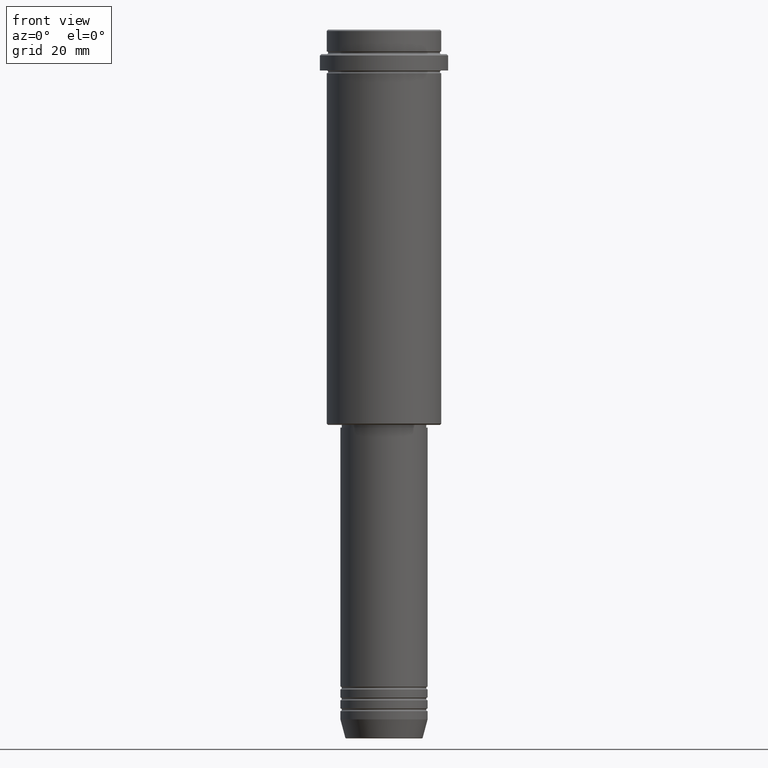
[diagram: clean part render]
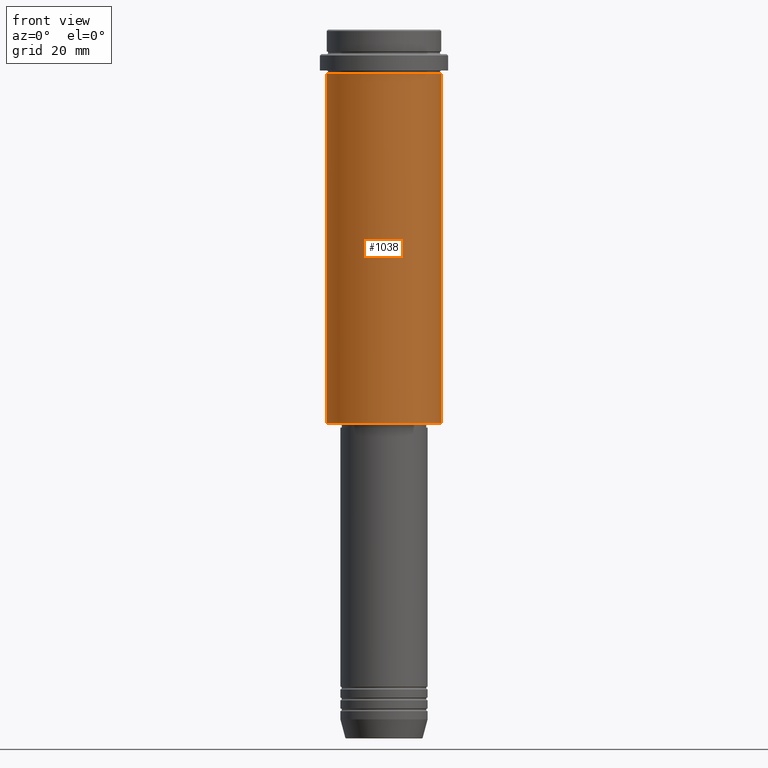
[diagram: same view with one face highlighted and labeled with its STEP entity id]
A machine part, front view. The second image highlights one B-rep face of the part: STEP entity #1038.
In plain terms, the highlighted cylindrical surface (partial cylindrical patch) has radius 21 mm, axis along (-0, -0, 1).
Its self-contained STEP definition (entity closure, byte-faithful):
#92 = DIRECTION ( 'NONE',  ( -0.000000000000000000, -0.000000000000000000, 1.000000000000000000 ) ) ;
#103 = VECTOR ( 'NONE', #530, 1000.000000000000000 ) ;
#123 = EDGE_LOOP ( 'NONE', ( #287, #1005, #302, #1215 ) ) ;
#142 = DIRECTION ( 'NONE',  ( -0.000000000000000000, -0.000000000000000000, 1.000000000000000000 ) ) ;
#168 = DIRECTION ( 'NONE',  ( 1.000000000000000000, 0.000000000000000000, 0.000000000000000000 ) ) ;
#195 = VECTOR ( 'NONE', #142, 1000.000000000000000 ) ;
#209 = LINE ( 'NONE', #873, #103 ) ;
#250 = DIRECTION ( 'NONE',  ( -1.000000000000000000, 0.000000000000000000, 0.000000000000000000 ) ) ;
#287 = ORIENTED_EDGE ( 'NONE', *, *, #1350, .F. ) ;
#300 = CIRCLE ( 'NONE', #1120, 21.00000000000000000 ) ;
#302 = ORIENTED_EDGE ( 'NONE', *, *, #1071, .T. ) ;
#471 = CARTESIAN_POINT ( 'NONE',  ( -21.00000000000000000, 2.571758278209441661E-15, 0.000000000000000000 ) ) ;
#480 = VERTEX_POINT ( 'NONE', #1406 ) ;
#530 = DIRECTION ( 'NONE',  ( -0.000000000000000000, -0.000000000000000000, 1.000000000000000000 ) ) ;
#534 = AXIS2_PLACEMENT_3D ( 'NONE', #848, #92, #954 ) ;
#581 = DIRECTION ( 'NONE',  ( -0.000000000000000000, -0.000000000000000000, 1.000000000000000000 ) ) ;
#628 = CARTESIAN_POINT ( 'NONE',  ( 21.00000000000000000, 0.000000000000000000, -16.00000000000000355 ) ) ;
#651 = EDGE_CURVE ( 'NONE', #480, #1028, #300, .T. ) ;
#698 = CARTESIAN_POINT ( 'NONE',  ( 0.000000000000000000, 0.000000000000000000, -144.5000000000000284 ) ) ;
#718 = DIRECTION ( 'NONE',  ( -0.000000000000000000, -0.000000000000000000, 1.000000000000000000 ) ) ;
#796 = CARTESIAN_POINT ( 'NONE',  ( -21.00000000000000000, 2.571758278209441661E-15, -144.5000000000000284 ) ) ;
#829 = CIRCLE ( 'NONE', #1179, 21.00000000000000000 ) ;
#842 = FACE_OUTER_BOUND ( 'NONE', #123, .T. ) ;
#848 = CARTESIAN_POINT ( 'NONE',  ( 0.000000000000000000, 0.000000000000000000, 0.000000000000000000 ) ) ;
#873 = CARTESIAN_POINT ( 'NONE',  ( 21.00000000000000000, 0.000000000000000000, 0.000000000000000000 ) ) ;
#936 = CARTESIAN_POINT ( 'NONE',  ( 21.00000000000000000, 0.000000000000000000, -144.5000000000000284 ) ) ;
#954 = DIRECTION ( 'NONE',  ( 1.000000000000000000, 0.000000000000000000, 0.000000000000000000 ) ) ;
#987 = VERTEX_POINT ( 'NONE', #936 ) ;
#1005 = ORIENTED_EDGE ( 'NONE', *, *, #1311, .T. ) ;
#1028 = VERTEX_POINT ( 'NONE', #628 ) ;
#1038 = ADVANCED_FACE ( 'NONE', ( #842 ), #1069, .T. ) ;
#1069 = CYLINDRICAL_SURFACE ( 'NONE', #534, 21.00000000000000000 ) ;
#1071 = EDGE_CURVE ( 'NONE', #987, #1028, #209, .T. ) ;
#1120 = AXIS2_PLACEMENT_3D ( 'NONE', #1379, #718, #168 ) ;
#1121 = LINE ( 'NONE', #471, #195 ) ;
#1179 = AXIS2_PLACEMENT_3D ( 'NONE', #698, #581, #250 ) ;
#1215 = ORIENTED_EDGE ( 'NONE', *, *, #651, .F. ) ;
#1311 = EDGE_CURVE ( 'NONE', #1368, #987, #829, .T. ) ;
#1350 = EDGE_CURVE ( 'NONE', #1368, #480, #1121, .T. ) ;
#1368 = VERTEX_POINT ( 'NONE', #796 ) ;
#1379 = CARTESIAN_POINT ( 'NONE',  ( 0.000000000000000000, 0.000000000000000000, -16.00000000000000355 ) ) ;
#1406 = CARTESIAN_POINT ( 'NONE',  ( -21.00000000000000000, 2.571758278209441661E-15, -16.00000000000000355 ) ) ;